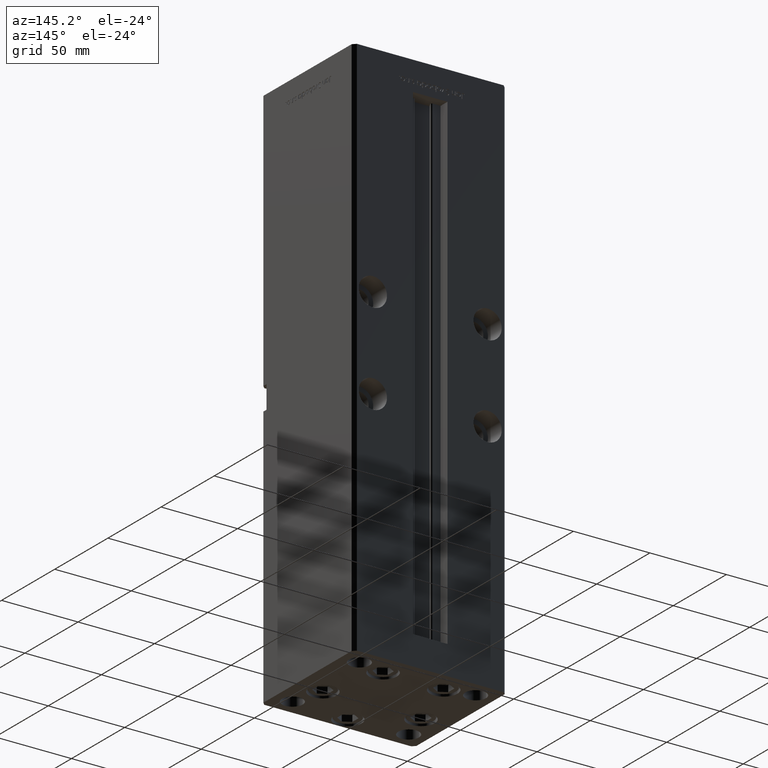
[diagram: clean part render]
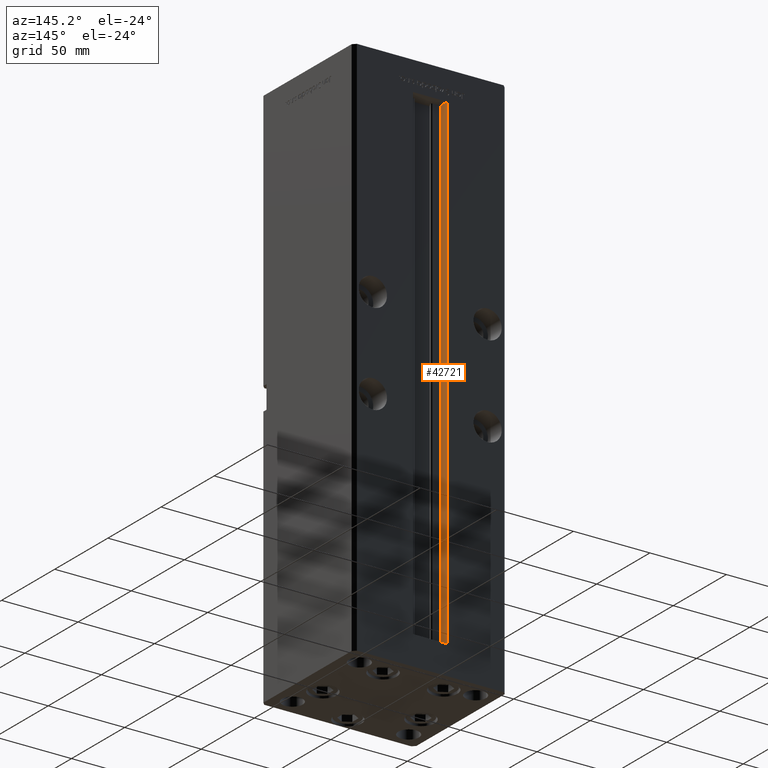
[diagram: same view with one face highlighted and labeled with its STEP entity id]
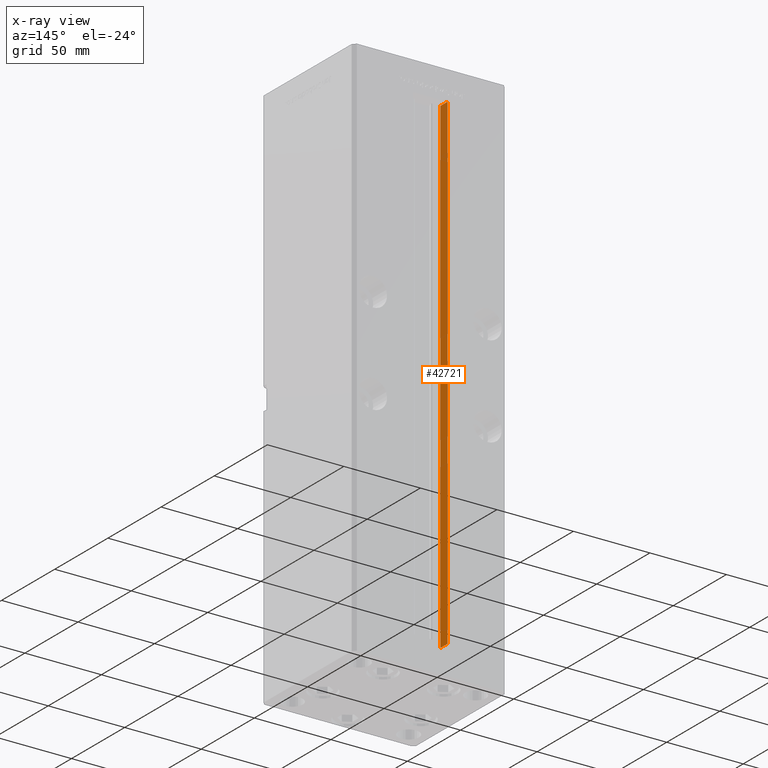
[diagram: x-ray of the same camera — body ghosted, the highlighted face saturated]
A machine part, auxiliary view. The second image highlights one B-rep face of the part: STEP entity #42721.
The next image is the same camera in x-ray: the body ghosted, the highlighted face saturated — about 0% of this face is hidden behind the body in this view.
In plain terms, the highlighted planar face has unit normal (-1, 0, 0).
Its self-contained STEP definition (entity closure, byte-faithful):
#690 = VECTOR ( 'NONE', #24723, 1000.000000000000000 ) ;
#805 = VECTOR ( 'NONE', #19691, 1000.000000000000000 ) ;
#1727 = LINE ( 'NONE', #21652, #32214 ) ;
#3009 = CARTESIAN_POINT ( 'NONE',  ( -11.24999999999999645, 43.50000000000000000, 318.5000000000000000 ) ) ;
#3532 = ORIENTED_EDGE ( 'NONE', *, *, #24256, .T. ) ;
#4096 = VERTEX_POINT ( 'NONE', #38313 ) ;
#5044 = EDGE_CURVE ( 'NONE', #39056, #4096, #12499, .T. ) ;
#11709 = DIRECTION ( 'NONE',  ( -0.000000000000000000, -1.000000000000000000, -0.000000000000000000 ) ) ;
#12499 = LINE ( 'NONE', #21096, #46093 ) ;
#12859 = ORIENTED_EDGE ( 'NONE', *, *, #32530, .F. ) ;
#13611 = VERTEX_POINT ( 'NONE', #18166 ) ;
#14960 = ORIENTED_EDGE ( 'NONE', *, *, #5044, .F. ) ;
#15917 = LINE ( 'NONE', #19954, #805 ) ;
#16298 = EDGE_CURVE ( 'NONE', #4096, #13611, #1727, .T. ) ;
#17848 = CARTESIAN_POINT ( 'NONE',  ( -11.24999999999999645, 37.00000000000000000, 0.000000000000000000 ) ) ;
#18166 = CARTESIAN_POINT ( 'NONE',  ( -11.24999999999999645, 37.00000000000000000, 318.5000000000000000 ) ) ;
#19691 = DIRECTION ( 'NONE',  ( 0.000000000000000000, 1.000000000000000000, 0.000000000000000000 ) ) ;
#19954 = CARTESIAN_POINT ( 'NONE',  ( -11.24999999999999645, 0.000000000000000000, 318.5000000000000000 ) ) ;
#21096 = CARTESIAN_POINT ( 'NONE',  ( -11.24999999999999645, 37.00000000000000000, 0.000000000000000000 ) ) ;
#21636 = DIRECTION ( 'NONE',  ( 0.000000000000000000, 0.000000000000000000, 1.000000000000000000 ) ) ;
#21652 = CARTESIAN_POINT ( 'NONE',  ( -11.24999999999999645, 37.00000000000000000, 0.000000000000000000 ) ) ;
#24256 = EDGE_CURVE ( 'NONE', #39056, #27599, #49413, .T. ) ;
#24723 = DIRECTION ( 'NONE',  ( -0.000000000000000000, -0.000000000000000000, 1.000000000000000000 ) ) ;
#25654 = PLANE ( 'NONE',  #35298 ) ;
#27599 = VERTEX_POINT ( 'NONE', #3009 ) ;
#29465 = ORIENTED_EDGE ( 'NONE', *, *, #16298, .F. ) ;
#32214 = VECTOR ( 'NONE', #51422, 1000.000000000000000 ) ;
#32530 = EDGE_CURVE ( 'NONE', #13611, #27599, #15917, .T. ) ;
#35298 = AXIS2_PLACEMENT_3D ( 'NONE', #17848, #42026, #21636 ) ;
#38313 = CARTESIAN_POINT ( 'NONE',  ( -11.24999999999999645, 37.00000000000000000, 0.000000000000000000 ) ) ;
#39056 = VERTEX_POINT ( 'NONE', #39896 ) ;
#39896 = CARTESIAN_POINT ( 'NONE',  ( -11.24999999999999645, 43.50000000000000000, 0.000000000000000000 ) ) ;
#41712 = EDGE_LOOP ( 'NONE', ( #29465, #14960, #3532, #12859 ) ) ;
#42026 = DIRECTION ( 'NONE',  ( -1.000000000000000000, 0.000000000000000000, 0.000000000000000000 ) ) ;
#42284 = FACE_OUTER_BOUND ( 'NONE', #41712, .T. ) ;
#42721 = ADVANCED_FACE ( 'NONE', ( #42284 ), #25654, .F. ) ;
#45649 = CARTESIAN_POINT ( 'NONE',  ( -11.24999999999999645, 43.50000000000000000, 0.000000000000000000 ) ) ;
#46093 = VECTOR ( 'NONE', #11709, 1000.000000000000000 ) ;
#49413 = LINE ( 'NONE', #45649, #690 ) ;
#51422 = DIRECTION ( 'NONE',  ( -0.000000000000000000, -0.000000000000000000, 1.000000000000000000 ) ) ;